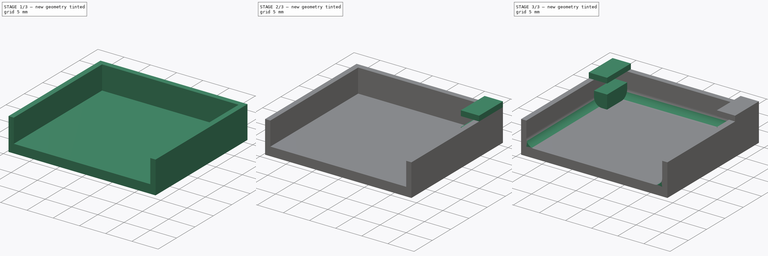
[diagram: build sequence overview — one tinted view per stage of 3, left to right]
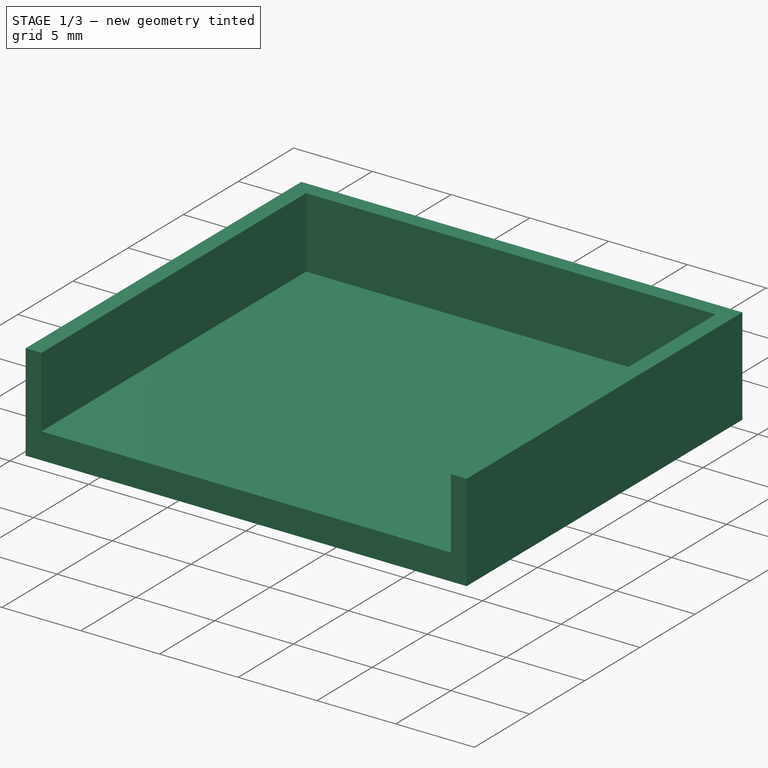
[diagram: stage 1 of 3 — iso view after this stage's code; geometry added in this stage tinted green]
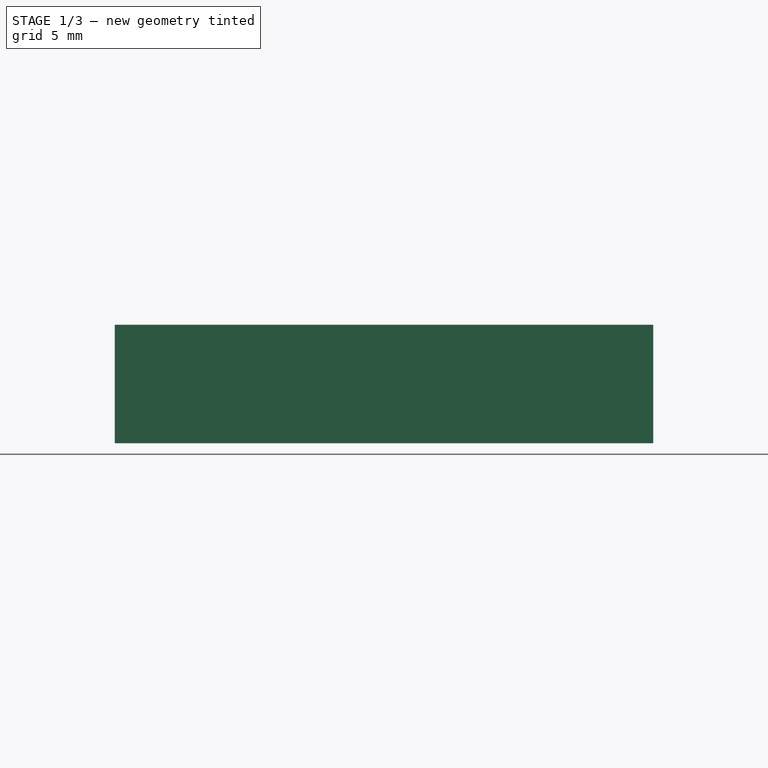
[diagram: stage 1 of 3 — front view after this stage's code; geometry added in this stage tinted green]
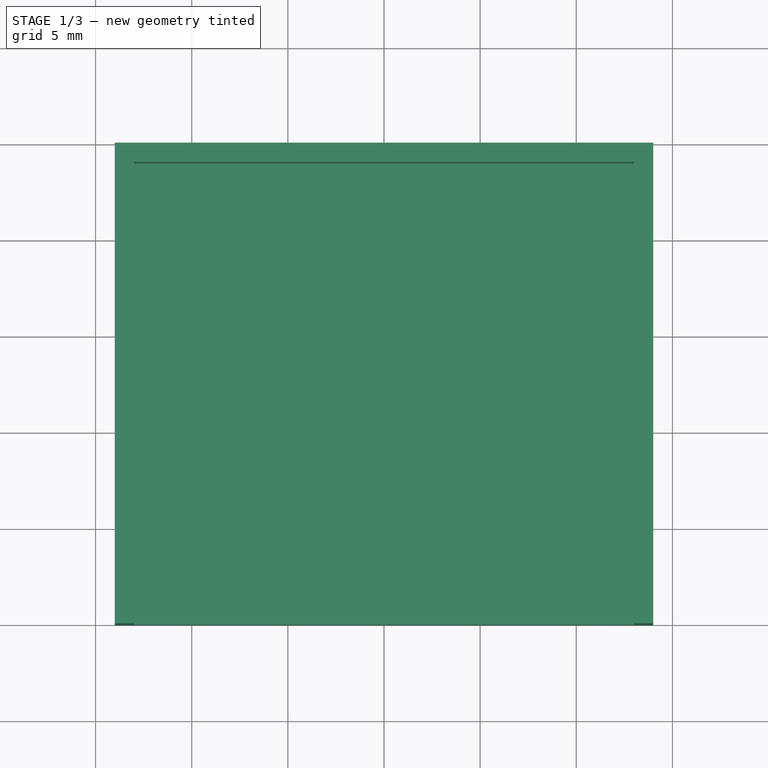
[diagram: stage 1 of 3 — top view after this stage's code; geometry added in this stage tinted green]
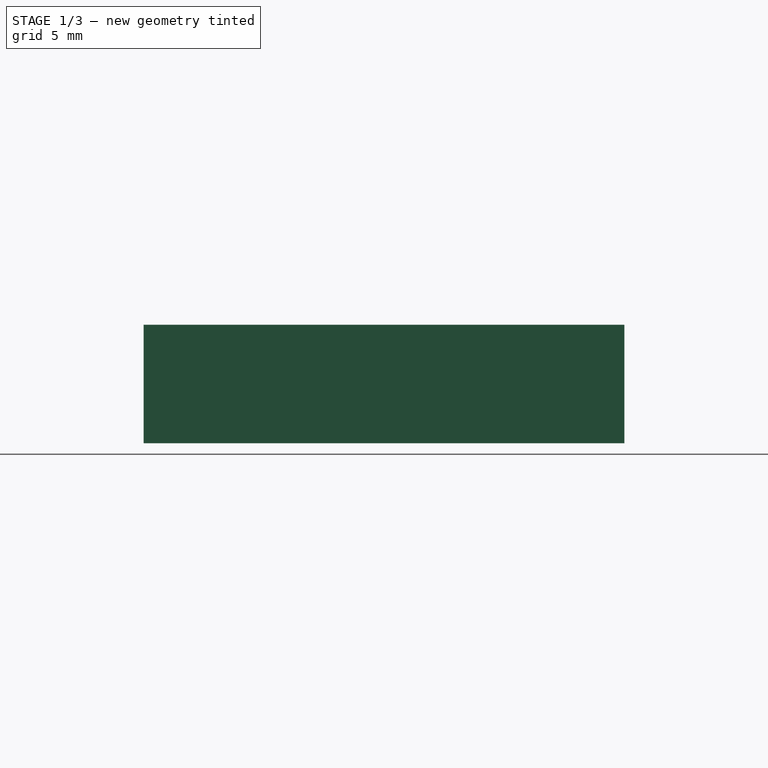
[diagram: stage 1 of 3 — right view after this stage's code; geometry added in this stage tinted green]
FCSTD DOCUMENT  (FreeCAD 0.16R6712 (Git))
Label: BottomCovering
License: All rights reserved
LicenseURL: http://en.wikipedia.org/wiki/All_rights_reserved
objects: Sketcher::SketchObject×3, PartDesign::Pad×3, PartDesign::Mirrored×1, PartDesign::Fillet×1
note: 11 computed .brp shape members not serialized (recipe doc carries the construction recipe); baked Part::Feature solids carry a one-line shape summary decoded from their .brp

FEATURE [Sketcher::SketchObject] Sketch
  sketch-geometry (4):
    g0: LineSegment StartX=-14 StartY=0 StartZ=0 EndX=14 EndY=0 EndZ=0
    g1: LineSegment StartX=14 StartY=0 StartZ=0 EndX=14 EndY=25 EndZ=0
    g2: LineSegment StartX=14 StartY=25 StartZ=0 EndX=-14 EndY=25 EndZ=0
    g3: LineSegment StartX=-14 StartY=25 StartZ=0 EndX=-14 EndY=0 EndZ=0
  constraints (12):
    c: Coincident(g0,g1)
    c: Coincident(g1,g2)
    c: Coincident(g2,g3)
    c: Coincident(g3,g0)
    c: Horizontal(g0)
    c: Horizontal(g2)
    c: Vertical(g1)
    c: Vertical(g3)
    c: PointOnObject(g0,g-1)
    c: Symmetric(g0,g0,g-2)
    c: Distance(g0) = 28
    c: Distance(g1) = 25
FEATURE [PartDesign::Pad] Pad
  Length = 1.66
  Length2 = 100
  Sketch = -> Sketch
  Type = 0
FEATURE [Sketcher::SketchObject] Sketch001
  ExternalGeometry = -> [Pad]
  Placement = pos=(0,0,1.66) rot=(0,0,1;0rad)
  Support = -> Pad [Face6]
  sketch-geometry (9):
    g0: LineSegment StartX=-14 StartY=0 StartZ=0 EndX=-13 EndY=0 EndZ=0
    g1: LineSegment StartX=-13 StartY=0 StartZ=0 EndX=-13 EndY=24 EndZ=0
    g2: LineSegment StartX=-13 StartY=24 StartZ=0 EndX=13 EndY=24 EndZ=0
    g3: LineSegment StartX=13 StartY=24 StartZ=0 EndX=13 EndY=0 EndZ=0
    g4: LineSegment StartX=13 StartY=0 StartZ=0 EndX=14 EndY=0 EndZ=0
    g5: LineSegment StartX=14 StartY=0 StartZ=0 EndX=14 EndY=25 EndZ=0
    g6: LineSegment StartX=14 StartY=25 StartZ=0 EndX=-14 EndY=25 EndZ=0
    g7: LineSegment StartX=-14 StartY=25 StartZ=0 EndX=-14 EndY=0 EndZ=0
    g8: LineSegment [constr] StartX=-13 StartY=24 StartZ=0 EndX=-13 EndY=25 EndZ=0
  constraints (25):
    c: Horizontal(g0)
    c: Coincident(g0,g1)
    c: Vertical(g1)
    c: Coincident(g1,g2)
    c: Horizontal(g2)
    c: Coincident(g2,g3)
    c: Vertical(g3)
    c: Coincident(g3,g4)
    c: Horizontal(g4)
    c: Coincident(g4,g5)
    c: Vertical(g5)
    c: Coincident(g5,g6)
    c: Horizontal(g6)
    c: Coincident(g6,g7)
    c: Coincident(g7,g0)
    c: Vertical(g7)
    c: PointOnObject(g8,g6)
    c: Vertical(g8)
    c: Coincident(g8,g1)
    c: Equal(g8,g0)
    c: Equal(g0,g4)
    c: Distance(g0) = 1
    c: Coincident(g4,g-4)
    c: Coincident(g0,g-3)
    c: Coincident(g6,g-3)
FEATURE [PartDesign::Pad] Pad001
  Length = 4.5
  Length2 = 100
  Sketch = -> Sketch001
  Type = 0
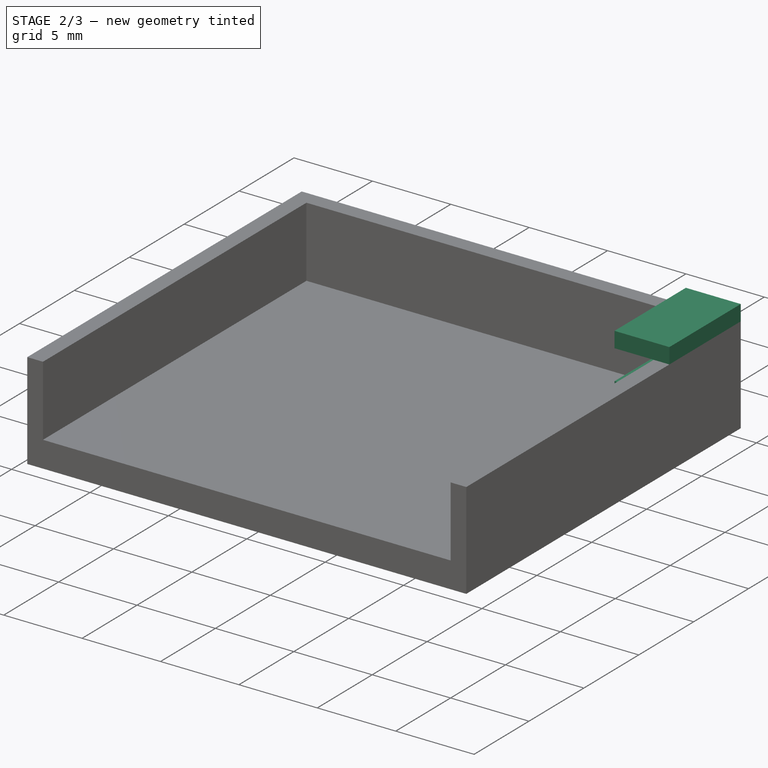
[diagram: stage 2 of 3 — iso view after this stage's code; geometry added in this stage tinted green]
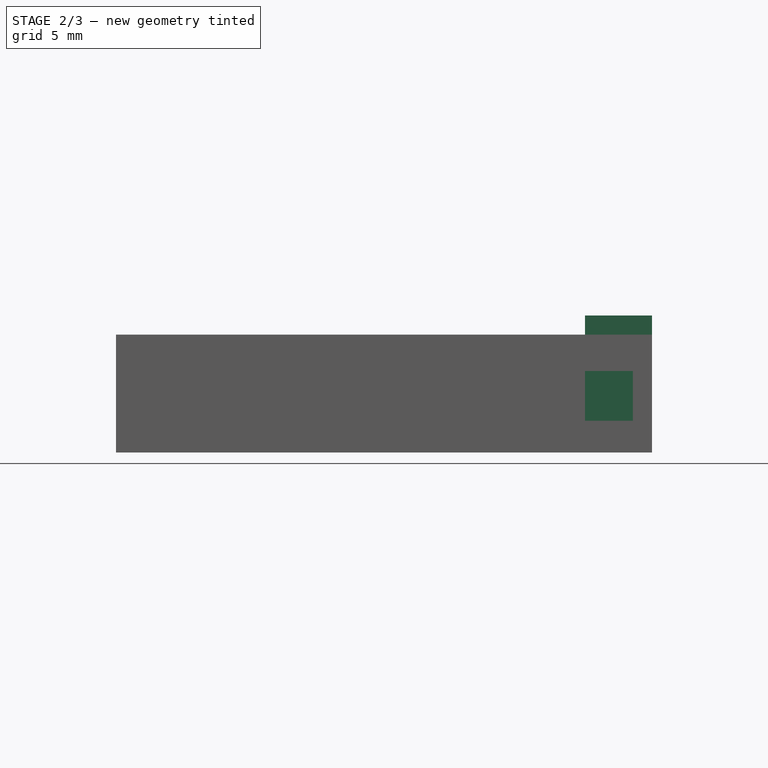
[diagram: stage 2 of 3 — front view after this stage's code; geometry added in this stage tinted green]
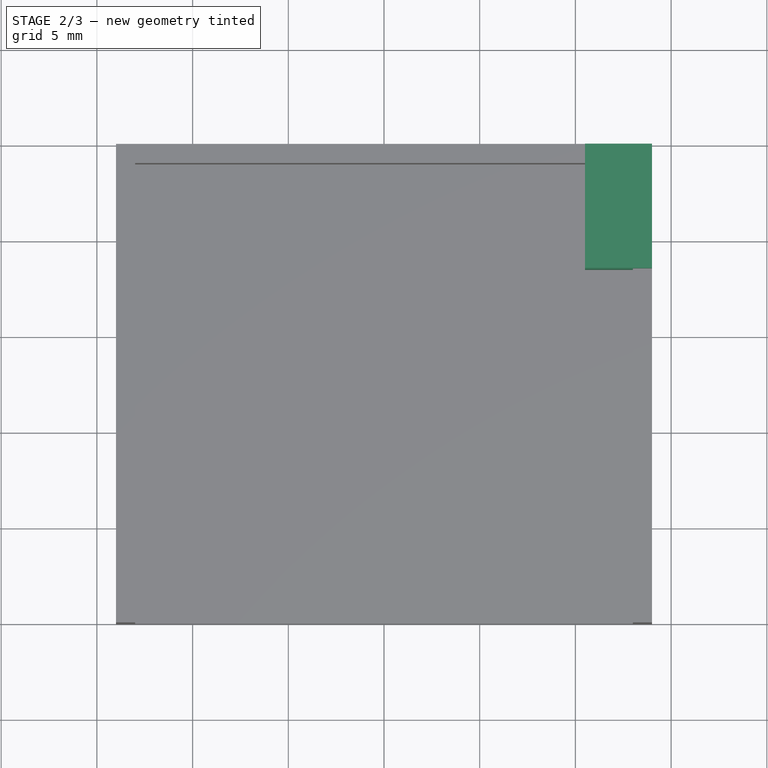
[diagram: stage 2 of 3 — top view after this stage's code; geometry added in this stage tinted green]
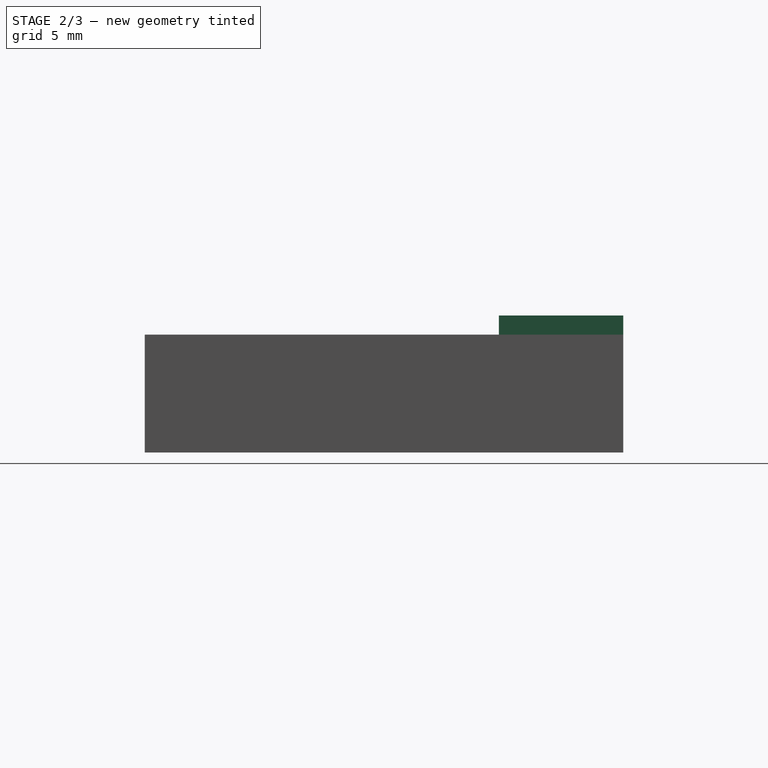
[diagram: stage 2 of 3 — right view after this stage's code; geometry added in this stage tinted green]
FEATURE [Sketcher::SketchObject] Sketch002
  ExternalGeometry = -> [Pad001]
  Placement = pos=(0,25,0) rot=(0,0.707107,0.707107;3.14159rad)
  Support = -> Pad001 [Face10]
  sketch-geometry (13):
    g0: LineSegment [constr] StartX=-13 StartY=4.26 StartZ=0 EndX=13 EndY=4.26 EndZ=0
    g1: LineSegment [constr] StartX=13 StartY=4.26 StartZ=0 EndX=13 EndY=6.16 EndZ=0
    g2: LineSegment [constr] StartX=13 StartY=6.16 StartZ=0 EndX=-13 EndY=6.16 EndZ=0
    g3: LineSegment [constr] StartX=-13 StartY=6.16 StartZ=0 EndX=-13 EndY=4.26 EndZ=0
    g4: LineSegment StartX=-10.5 StartY=6.16 StartZ=0 EndX=-10.5 EndY=7.16 EndZ=0
    g5: LineSegment StartX=-10.5 StartY=7.16 StartZ=0 EndX=-14 EndY=7.16 EndZ=0
    g6: LineSegment StartX=-14 StartY=7.16 StartZ=0 EndX=-14 EndY=1.66 EndZ=0
    g7: LineSegment StartX=-14 StartY=1.66 StartZ=0 EndX=-10.5 EndY=1.66 EndZ=0
    g8: LineSegment StartX=-10.5 StartY=1.66 StartZ=0 EndX=-10.5 EndY=4.26 EndZ=0
    g9: LineSegment StartX=-10.5 StartY=4.26 StartZ=0 EndX=-13 EndY=4.26 EndZ=0
    g10: LineSegment StartX=-13 StartY=4.26 StartZ=0 EndX=-13 EndY=6.16 EndZ=0
    g11: LineSegment StartX=-13 StartY=6.16 StartZ=0 EndX=-10.5 EndY=6.16 EndZ=0
    g12: LineSegment [constr] StartX=-13 StartY=6.16 StartZ=0 EndX=-14 EndY=6.16 EndZ=0
  constraints (38):
    c: Coincident(g0,g1)
    c: Coincident(g1,g2)
    c: Coincident(g2,g3)
    c: Coincident(g3,g0)
    c: Horizontal(g0)
    c: Horizontal(g2)
    c: Vertical(g1)
    c: Vertical(g3)
    c: Distance(g3) = 1.9
    c: Distance(g2) = 26
    c: Symmetric(g0,g0,g-2)
    c: PointOnObject(g2,g-3)
    c: Vertical(g4)
    c: Coincident(g4,g5)
    c: Horizontal(g5)
    c: Coincident(g5,g6)
    c: Vertical(g6)
    c: Coincident(g6,g7)
    c: Horizontal(g7)
    c: Coincident(g7,g8)
    c: Vertical(g8)
    c: Coincident(g8,g9)
    c: Horizontal(g9)
    c: Coincident(g9,g10)
    c: Vertical(g10)
    c: Coincident(g10,g11)
    c: Coincident(g11,g4)
    c: Horizontal(g11)
    c: Coincident(g12,g10)
    c: PointOnObject(g12,g6)
    c: Horizontal(g12)
    c: Equal(g12,g4)
    c: Coincident(g0,g9)
    c: Coincident(g2,g10)
    c: Coincident(g-3,g12)
    c: Equal(g5,g7)
    c: Distance(g8,g0) = 2.5
    c: Distance(g8) = 2.6
FEATURE [PartDesign::Pad] Pad002
  Length = 6.5
  Length2 = 100
  Reversed = true
  Sketch = -> Sketch002
  Type = 0
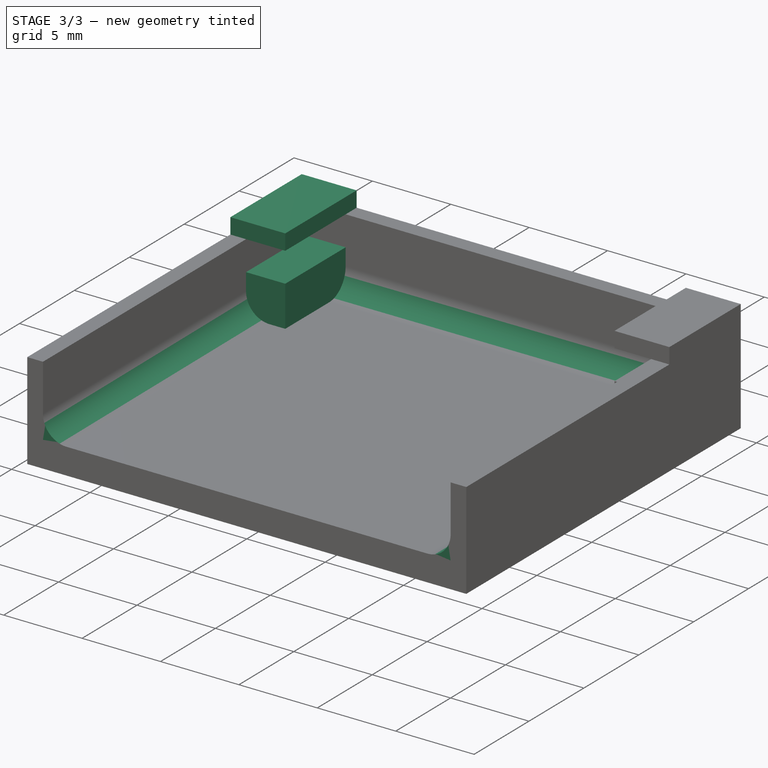
[diagram: stage 3 of 3 — iso view after this stage's code; geometry added in this stage tinted green]
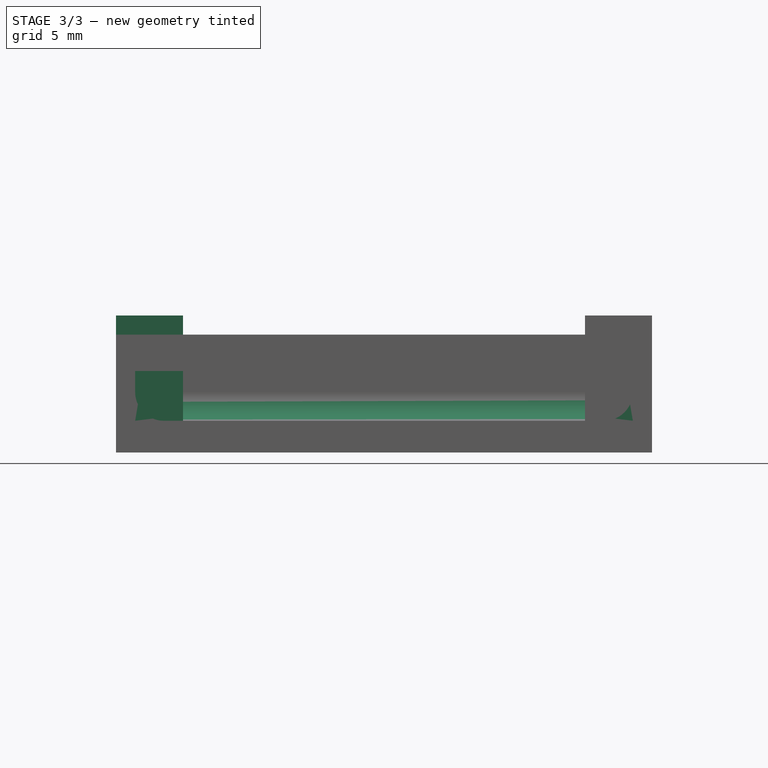
[diagram: stage 3 of 3 — front view after this stage's code; geometry added in this stage tinted green]
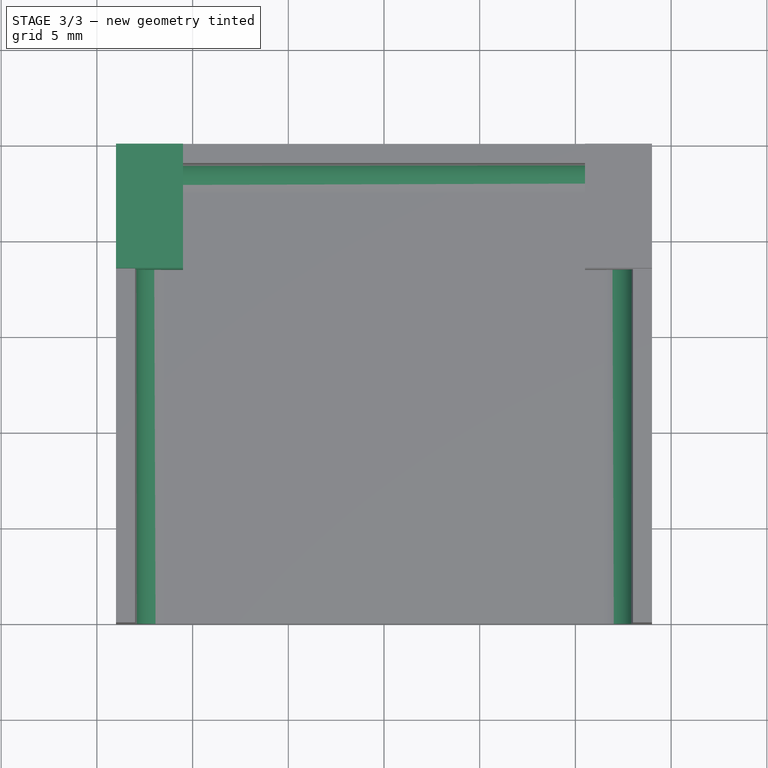
[diagram: stage 3 of 3 — top view after this stage's code; geometry added in this stage tinted green]
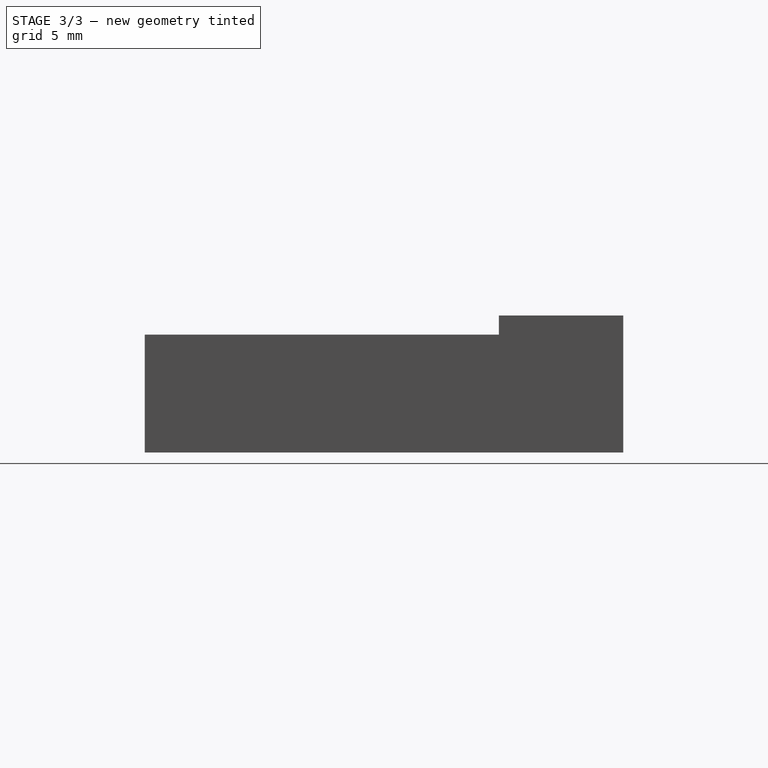
[diagram: stage 3 of 3 — right view after this stage's code; geometry added in this stage tinted green]
FEATURE [PartDesign::Mirrored] Mirrored
  MirrorPlane = -> Sketch002 [V_Axis]
  Originals = -> [Pad002]
FEATURE [PartDesign::Fillet] Fillet
  Base = -> Mirrored [Edge25,Edge22,Edge28]
  Radius = 1.5
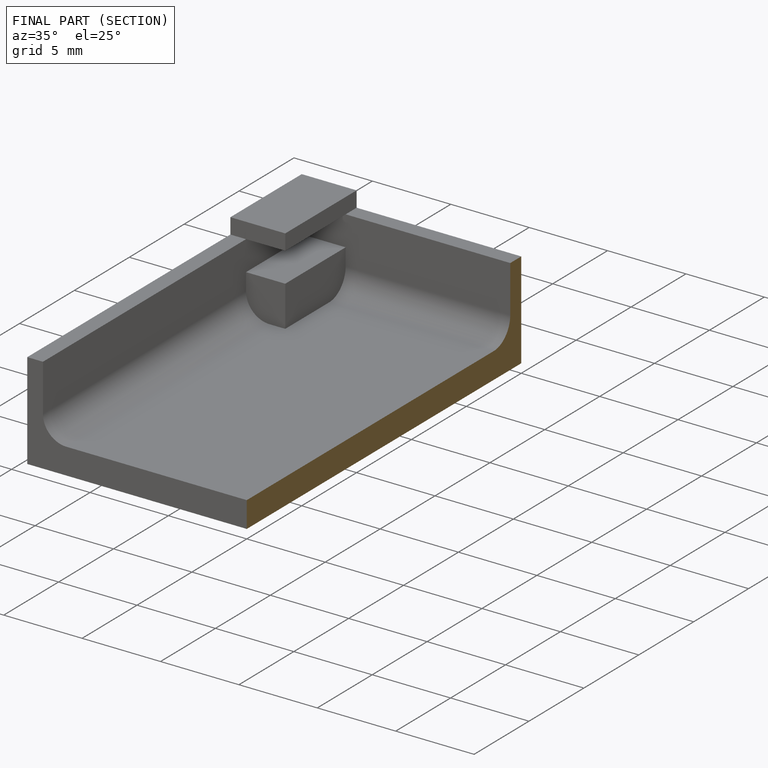
[diagram: finished part — half-section view (interior)]
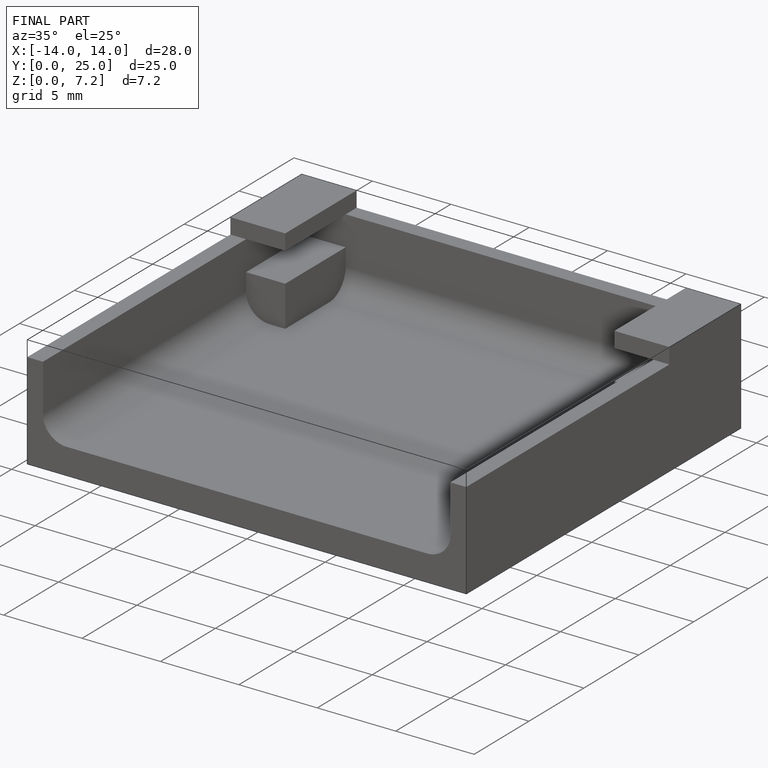
[diagram: finished part — iso view with bounding-box wireframe]
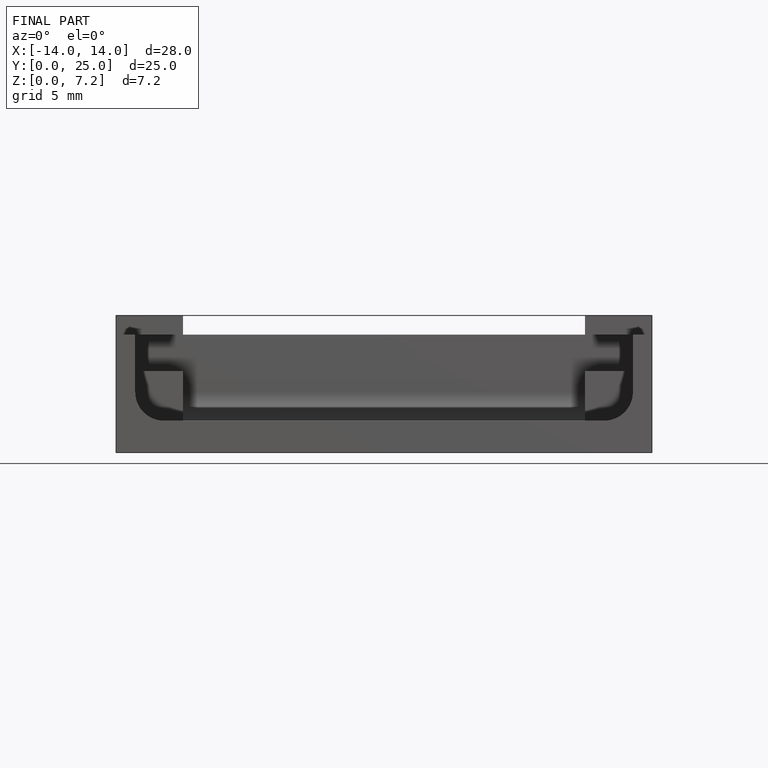
[diagram: finished part — front view with bounding-box wireframe]
